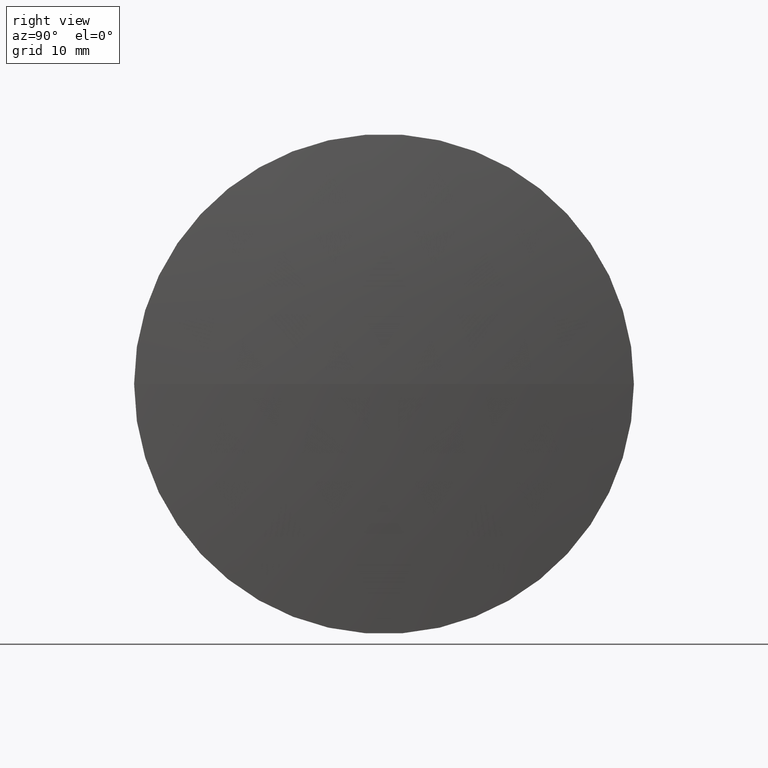
[diagram: clean part render]
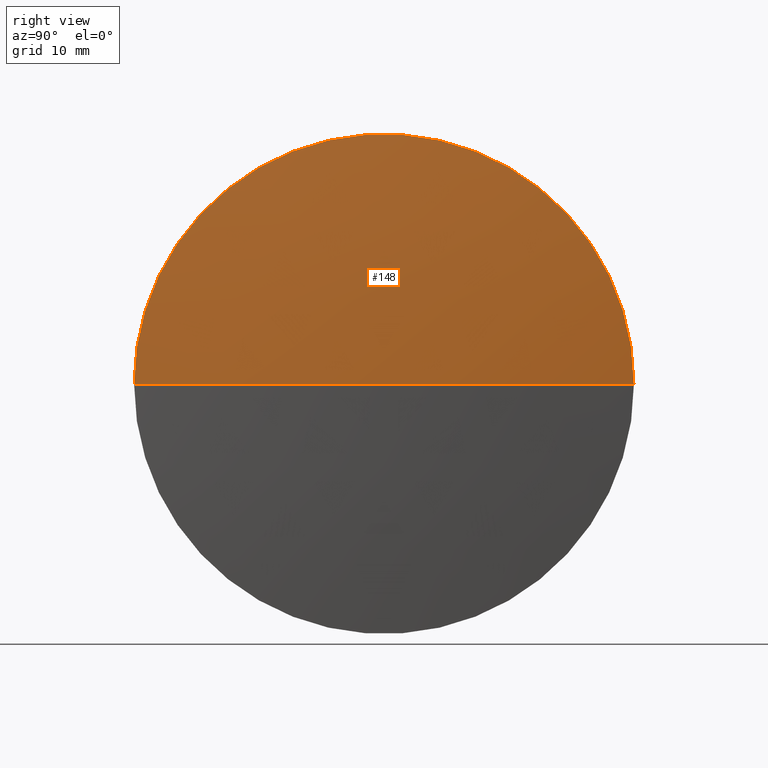
[diagram: same view with one face highlighted and labeled with its STEP entity id]
A machine part, right view. The second image highlights one B-rep face of the part: STEP entity #148.
In plain terms, the highlighted spherical surface has radius 350.755 mm.
Its self-contained STEP definition (entity closure, byte-faithful):
#8 = AXIS2_PLACEMENT_3D ( 'NONE', #77, #132, #74 ) ;
#9 = DIRECTION ( 'NONE',  ( 1.000000000000000000, 0.0000000000000000000, 0.0000000000000000000 ) ) ;
#20 = ORIENTED_EDGE ( 'NONE', *, *, #258, .T. ) ;
#21 = CARTESIAN_POINT ( 'NONE',  ( 249.9366127648179900, 168.9814138434225900, 0.0000000000000000000 ) ) ;
#26 = CARTESIAN_POINT ( 'NONE',  ( -99.06812836394114200, 133.9814138434225300, 0.0000000000000000000 ) ) ;
#34 = VERTEX_POINT ( 'NONE', #21 ) ;
#40 = CIRCLE ( 'NONE', #176, 35.00000000000030600 ) ;
#47 = ORIENTED_EDGE ( 'NONE', *, *, #197, .F. ) ;
#52 = SPHERICAL_SURFACE ( 'NONE', #211, 350.7553411287590800 ) ;
#68 = DIRECTION ( 'NONE',  ( 1.772531508114250600E-014, 1.000000000000000000, 0.0000000000000000000 ) ) ;
#74 = DIRECTION ( 'NONE',  ( 0.0000000000000000000, 1.000000000000000000, 1.224646799147353200E-016 ) ) ;
#77 = CARTESIAN_POINT ( 'NONE',  ( -99.06812836394114200, 133.9814138434225300, 0.0000000000000000000 ) ) ;
#91 = VERTEX_POINT ( 'NONE', #253 ) ;
#108 = FACE_OUTER_BOUND ( 'NONE', #233, .T. ) ;
#123 = CIRCLE ( 'NONE', #214, 350.7553411287590800 ) ;
#131 = CARTESIAN_POINT ( 'NONE',  ( 249.9366127648167400, 98.98141384341606400, -4.286263797015769600E-015 ) ) ;
#132 = DIRECTION ( 'NONE',  ( 2.170125038671178500E-030, 1.224646799147353200E-016, -1.000000000000000000 ) ) ;
#148 = ADVANCED_FACE ( 'NONE', ( #108 ), #52, .T. ) ;
#155 = CARTESIAN_POINT ( 'NONE',  ( -99.06812836394114200, 133.9814138434225300, 0.0000000000000000000 ) ) ;
#170 = VERTEX_POINT ( 'NONE', #131 ) ;
#171 = DIRECTION ( 'NONE',  ( 0.0000000000000000000, 0.0000000000000000000, -1.000000000000000000 ) ) ;
#176 = AXIS2_PLACEMENT_3D ( 'NONE', #290, #256, #259 ) ;
#178 = DIRECTION ( 'NONE',  ( 0.0000000000000000000, 0.0000000000000000000, 1.000000000000000000 ) ) ;
#197 = EDGE_CURVE ( 'NONE', #170, #34, #40, .T. ) ;
#211 = AXIS2_PLACEMENT_3D ( 'NONE', #155, #171, #68 ) ;
#214 = AXIS2_PLACEMENT_3D ( 'NONE', #26, #178, #9 ) ;
#233 = EDGE_LOOP ( 'NONE', ( #270, #20, #47 ) ) ;
#240 = EDGE_CURVE ( 'NONE', #91, #170, #241, .T. ) ;
#241 = CIRCLE ( 'NONE', #8, 350.7553411287590800 ) ;
#253 = CARTESIAN_POINT ( 'NONE',  ( 251.6872127648179900, 133.9814138434163300, 0.0000000000000000000 ) ) ;
#256 = DIRECTION ( 'NONE',  ( -1.000000000000000000, 1.772041571645068800E-014, -0.0000000000000000000 ) ) ;
#258 = EDGE_CURVE ( 'NONE', #91, #34, #123, .T. ) ;
#259 = DIRECTION ( 'NONE',  ( -1.744636181553802200E-014, -1.000000000000000000, 0.0000000000000000000 ) ) ;
#270 = ORIENTED_EDGE ( 'NONE', *, *, #240, .F. ) ;
#290 = CARTESIAN_POINT ( 'NONE',  ( 249.9366127648173700, 133.9814138434223000, 0.0000000000000000000 ) ) ;